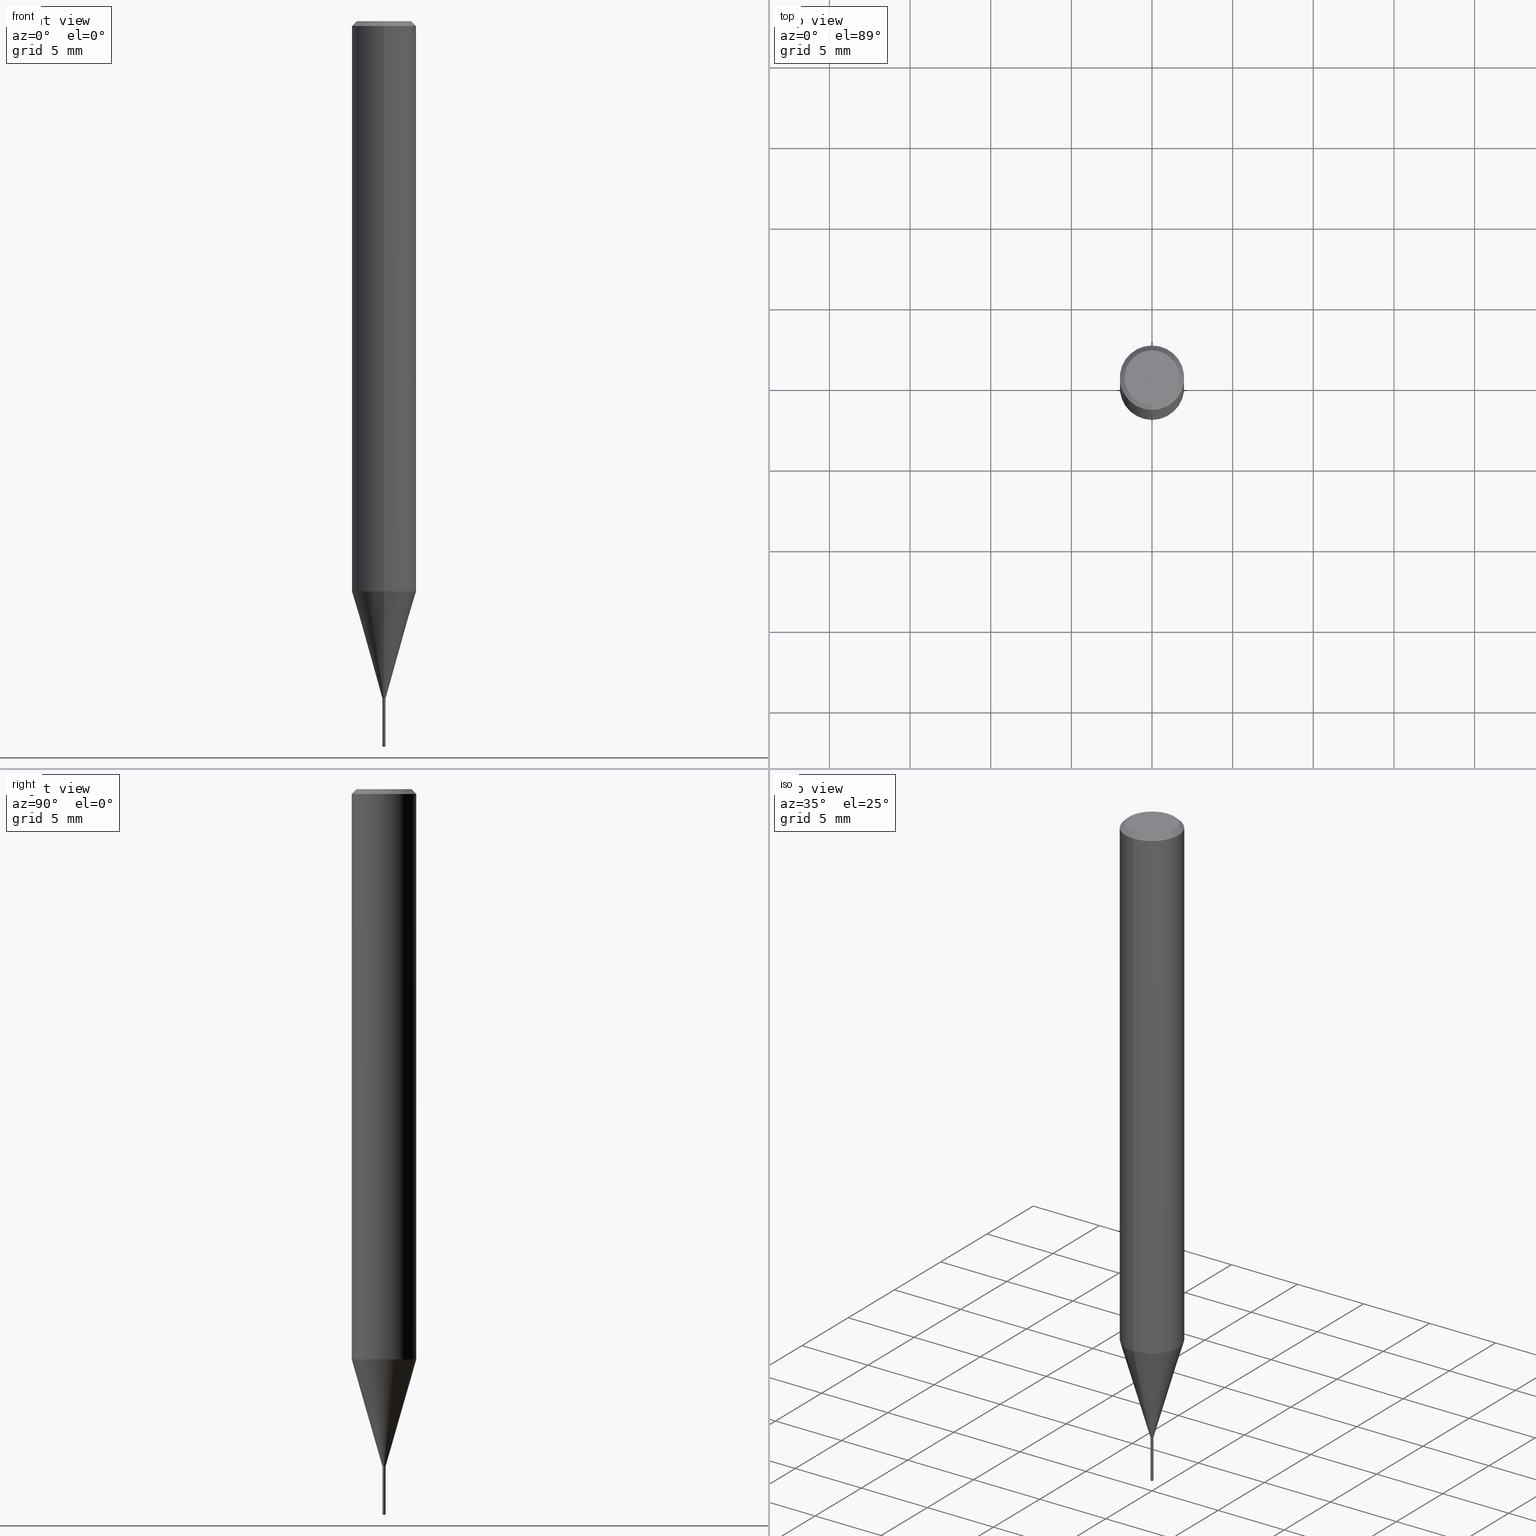
[diagram: canonical four-view strip — front | top / right | iso, engineering-drawing reading convention]
A machine part, canonical four-view strip (front | top / right | iso — engineering-drawing reading convention). The complete STEP part file that produces these views, byte-faithful:
ISO-10303-21;
HEADER;
FILE_DESCRIPTION(('no description'),'unknown implementation level');
FILE_NAME('HSLB2002-030-Huellk.stp','  ',('CIMSOURCE GmbH'),('CADClick - KiM GmbH - www.kimweb.de'),'unknown preprocess','ACIS','unknown authorization');
FILE_SCHEMA(('automotive_design'));
ENDSEC;
DATA;
#1=MECHANICAL_DESIGN_GEOMETRIC_PRESENTATION_REPRESENTATION(' ',(#14,#15,#16,#17,#18,#19,#20,#21,#22,#23,#24,#25,#26,#27,#28,#29,#30,#31,#32,#33,#34,#35,#36,#37,#38,#39,#40,#41,#42,#43,#44,#45,#46,#47,#48,#49,#50,#51,#52,#53,#54,#55,#56,#57,#58,#59,#60,#61,#62,#63,#64,#65,#66,#67,#68,#69,#70,#71,#72,#73,#74),#10);
#2=PRODUCT_DEFINITION_CONTEXT('',#75,'design');
#3=APPLICATION_PROTOCOL_DEFINITION('INTERNATIONAL STANDARD','automotive_design',1994,#75);
#4=PRODUCT_CATEGORY_RELATIONSHIP('NONE','NONE',#76,#77);
#5=SHAPE_DEFINITION_REPRESENTATION(#78,#79);
#6=PRODUCT_DEFINITION_CONTEXT('',#80,'design');
#7=APPLICATION_PROTOCOL_DEFINITION('INTERNATIONAL STANDARD','automotive_design',1994,#80);
#8=PRODUCT_CATEGORY_RELATIONSHIP('NONE','NONE',#81,#82);
#9=SHAPE_DEFINITION_REPRESENTATION(#83,#84);
#10= (GEOMETRIC_REPRESENTATION_CONTEXT(3)GLOBAL_UNCERTAINTY_ASSIGNED_CONTEXT((#87))GLOBAL_UNIT_ASSIGNED_CONTEXT((#89,#90,#91))REPRESENTATION_CONTEXT('NONE','WORKSPACE'));
#14=STYLED_ITEM('',(#93),#94);
#15=STYLED_ITEM('',(#95),#96);
#16=STYLED_ITEM('',(#97),#98);
#17=STYLED_ITEM('',(#99),#100);
#18=STYLED_ITEM('',(#101),#102);
#19=STYLED_ITEM('',(#103),#104);
#20=STYLED_ITEM('',(#105),#106);
#21=STYLED_ITEM('',(#107),#108);
#22=STYLED_ITEM('',(#109),#110);
#23=STYLED_ITEM('',(#111),#112);
#24=STYLED_ITEM('',(#113),#114);
#25=STYLED_ITEM('',(#115),#116);
#26=STYLED_ITEM('',(#117),#118);
#27=STYLED_ITEM('',(#119),#120);
#28=STYLED_ITEM('',(#121),#122);
#29=STYLED_ITEM('',(#123),#124);
#30=STYLED_ITEM('',(#125),#126);
#31=STYLED_ITEM('',(#127),#128);
#32=STYLED_ITEM('',(#129),#130);
#33=STYLED_ITEM('',(#131),#132);
#34=STYLED_ITEM('',(#133),#134);
#35=STYLED_ITEM('',(#135),#136);
#36=STYLED_ITEM('',(#137),#138);
#37=STYLED_ITEM('',(#139),#140);
#38=STYLED_ITEM('',(#141),#142);
#39=STYLED_ITEM('',(#143),#144);
#40=STYLED_ITEM('',(#145),#146);
#41=STYLED_ITEM('',(#147),#148);
#42=STYLED_ITEM('',(#149),#150);
#43=STYLED_ITEM('',(#151),#152);
#44=STYLED_ITEM('',(#153),#154);
#45=STYLED_ITEM('',(#155),#156);
#46=STYLED_ITEM('',(#157),#158);
#47=STYLED_ITEM('',(#159),#160);
#48=STYLED_ITEM('',(#161),#162);
#49=STYLED_ITEM('',(#163),#164);
#50=STYLED_ITEM('',(#165),#166);
#51=STYLED_ITEM('',(#167),#168);
#52=STYLED_ITEM('',(#169),#170);
#53=STYLED_ITEM('',(#171),#172);
#54=STYLED_ITEM('',(#173),#174);
#55=STYLED_ITEM('',(#175),#176);
#56=STYLED_ITEM('',(#177),#178);
#57=STYLED_ITEM('',(#179),#180);
#58=STYLED_ITEM('',(#181),#182);
#59=STYLED_ITEM('',(#183),#184);
#60=STYLED_ITEM('',(#185),#186);
#61=STYLED_ITEM('',(#187),#188);
#62=STYLED_ITEM('',(#189),#190);
#63=STYLED_ITEM('',(#191),#192);
#64=STYLED_ITEM('',(#193),#194);
#65=STYLED_ITEM('',(#195),#196);
#66=STYLED_ITEM('',(#197),#198);
#67=STYLED_ITEM('',(#199),#200);
#68=STYLED_ITEM('',(#201),#202);
#69=STYLED_ITEM('',(#203),#204);
#70=STYLED_ITEM('',(#205),#206);
#71=STYLED_ITEM('',(#207),#208);
#72=STYLED_ITEM('',(#209),#210);
#73=STYLED_ITEM('',(#211),#212);
#74=STYLED_ITEM('',(#213),#214);
#75=APPLICATION_CONTEXT(' ');
#76=PRODUCT_CATEGORY('part','NONE');
#77=PRODUCT_RELATED_PRODUCT_CATEGORY('detail',' ',(#215));
#78=PRODUCT_DEFINITION_SHAPE('NONE','NONE',#216);
#79=ADVANCED_BREP_SHAPE_REPRESENTATION('1',(#168,#217),#10);
#80=APPLICATION_CONTEXT(' ');
#81=PRODUCT_CATEGORY('part','NONE');
#82=PRODUCT_RELATED_PRODUCT_CATEGORY('detail',' ',(#218));
#83=PRODUCT_DEFINITION_SHAPE('NONE','NONE',#219);
#84=ADVANCED_BREP_SHAPE_REPRESENTATION('2',(#192,#220),#10);
#87=UNCERTAINTY_MEASURE_WITH_UNIT(LENGTH_MEASURE(1.0E-006),#89,'','');
#89= (CONVERSION_BASED_UNIT('MILLIMETRE',#223)LENGTH_UNIT()NAMED_UNIT(#226));
#90= (NAMED_UNIT(#228)PLANE_ANGLE_UNIT()SI_UNIT($,.RADIAN.));
#91= (NAMED_UNIT(#228)SOLID_ANGLE_UNIT()SI_UNIT($,.STERADIAN.));
#93=PRESENTATION_STYLE_ASSIGNMENT((#234));
#94=ADVANCED_FACE('',(#235),#236,.T.);
#95=PRESENTATION_STYLE_ASSIGNMENT((#237));
#96=EDGE_CURVE('',#106,#190,#238,.T.);
#97=PRESENTATION_STYLE_ASSIGNMENT((#239));
#98=ADVANCED_FACE('',(#240),#241,.T.);
#99=PRESENTATION_STYLE_ASSIGNMENT((#242));
#100=EDGE_CURVE('',#138,#166,#243,.T.);
#101=PRESENTATION_STYLE_ASSIGNMENT((#244));
#102=VERTEX_POINT('',#245);
#103=PRESENTATION_STYLE_ASSIGNMENT((#246));
#104=EDGE_CURVE('',#172,#160,#247,.T.);
#105=PRESENTATION_STYLE_ASSIGNMENT((#248));
#106=VERTEX_POINT('',#249);
#107=PRESENTATION_STYLE_ASSIGNMENT((#250));
#108=EDGE_CURVE('',#106,#188,#251,.T.);
#109=PRESENTATION_STYLE_ASSIGNMENT((#252));
#110=ADVANCED_FACE('',(#253,#254),#255,.T.);
#111=PRESENTATION_STYLE_ASSIGNMENT((#256));
#112=ADVANCED_FACE('',(#257),#258,.T.);
#113=PRESENTATION_STYLE_ASSIGNMENT((#259));
#114=EDGE_CURVE('',#190,#138,#260,.T.);
#115=PRESENTATION_STYLE_ASSIGNMENT((#261));
#116=EDGE_CURVE('',#188,#106,#262,.T.);
#117=PRESENTATION_STYLE_ASSIGNMENT((#263));
#118=EDGE_CURVE('',#170,#190,#264,.T.);
#119=PRESENTATION_STYLE_ASSIGNMENT((#265));
#120=VERTEX_POINT('',#266);
#121=PRESENTATION_STYLE_ASSIGNMENT((#267));
#122=VERTEX_POINT('',#268);
#123=PRESENTATION_STYLE_ASSIGNMENT((#269));
#124=VERTEX_POINT('',#270);
#125=PRESENTATION_STYLE_ASSIGNMENT((#271));
#126=ADVANCED_FACE('',(#272),#273,.T.);
#127=PRESENTATION_STYLE_ASSIGNMENT((#274));
#128=ADVANCED_FACE('',(#275),#276,.T.);
#129=PRESENTATION_STYLE_ASSIGNMENT((#277));
#130=EDGE_CURVE('',#122,#182,#278,.T.);
#131=PRESENTATION_STYLE_ASSIGNMENT((#279));
#132=VERTEX_POINT('',#280);
#133=PRESENTATION_STYLE_ASSIGNMENT((#281));
#134=EDGE_CURVE('',#154,#132,#282,.T.);
#135=PRESENTATION_STYLE_ASSIGNMENT((#283));
#136=ADVANCED_FACE('',(#284),#285,.T.);
#137=PRESENTATION_STYLE_ASSIGNMENT((#286));
#138=VERTEX_POINT('',#287);
#139=PRESENTATION_STYLE_ASSIGNMENT((#288));
#140=EDGE_CURVE('',#182,#102,#289,.T.);
#141=PRESENTATION_STYLE_ASSIGNMENT((#290));
#142=EDGE_CURVE('',#120,#212,#291,.T.);
#143=PRESENTATION_STYLE_ASSIGNMENT((#292));
#144=ADVANCED_FACE('',(#293),#294,.T.);
#145=PRESENTATION_STYLE_ASSIGNMENT((#295));
#146=EDGE_CURVE('',#132,#172,#296,.T.);
#147=PRESENTATION_STYLE_ASSIGNMENT((#297));
#148=EDGE_CURVE('',#102,#182,#298,.T.);
#149=PRESENTATION_STYLE_ASSIGNMENT((#299));
#150=ADVANCED_FACE('',(#300),#301,.T.);
#151=PRESENTATION_STYLE_ASSIGNMENT((#302));
#152=EDGE_CURVE('',#120,#122,#303,.T.);
#153=PRESENTATION_STYLE_ASSIGNMENT((#304));
#154=VERTEX_POINT('',#305);
#155=PRESENTATION_STYLE_ASSIGNMENT((#306));
#156=ADVANCED_FACE('',(#307),#308,.T.);
#157=PRESENTATION_STYLE_ASSIGNMENT((#309));
#158=ADVANCED_FACE('',(#310),#311,.T.);
#159=PRESENTATION_STYLE_ASSIGNMENT((#312));
#160=VERTEX_POINT('',#313);
#161=PRESENTATION_STYLE_ASSIGNMENT((#314));
#162=EDGE_CURVE('',#166,#170,#315,.T.);
#163=PRESENTATION_STYLE_ASSIGNMENT((#316));
#164=ADVANCED_FACE('',(#317),#318,.T.);
#165=PRESENTATION_STYLE_ASSIGNMENT((#319));
#166=VERTEX_POINT('',#320);
#167=PRESENTATION_STYLE_ASSIGNMENT((#321));
#168=MANIFOLD_SOLID_BREP('1',#322);
#169=PRESENTATION_STYLE_ASSIGNMENT((#323));
#170=VERTEX_POINT('',#324);
#171=PRESENTATION_STYLE_ASSIGNMENT((#325));
#172=VERTEX_POINT('',#326);
#173=PRESENTATION_STYLE_ASSIGNMENT((#327));
#174=ADVANCED_FACE('',(#328),#329,.T.);
#175=PRESENTATION_STYLE_ASSIGNMENT((#330));
#176=EDGE_CURVE('',#212,#124,#331,.T.);
#177=PRESENTATION_STYLE_ASSIGNMENT((#332));
#178=EDGE_CURVE('',#170,#188,#333,.T.);
#179=PRESENTATION_STYLE_ASSIGNMENT((#334));
#180=EDGE_CURVE('',#124,#212,#335,.T.);
#181=PRESENTATION_STYLE_ASSIGNMENT((#336));
#182=VERTEX_POINT('',#337);
#183=PRESENTATION_STYLE_ASSIGNMENT((#338));
#184=EDGE_CURVE('',#172,#132,#339,.T.);
#185=PRESENTATION_STYLE_ASSIGNMENT((#340));
#186=EDGE_CURVE('',#102,#120,#341,.T.);
#187=PRESENTATION_STYLE_ASSIGNMENT((#342));
#188=VERTEX_POINT('',#343);
#189=PRESENTATION_STYLE_ASSIGNMENT((#344));
#190=VERTEX_POINT('',#345);
#191=PRESENTATION_STYLE_ASSIGNMENT((#346));
#192=MANIFOLD_SOLID_BREP('2',#347);
#193=PRESENTATION_STYLE_ASSIGNMENT((#348));
#194=EDGE_CURVE('',#166,#138,#349,.T.);
#195=PRESENTATION_STYLE_ASSIGNMENT((#350));
#196=ADVANCED_FACE('',(#351),#352,.T.);
#197=PRESENTATION_STYLE_ASSIGNMENT((#353));
#198=EDGE_CURVE('',#190,#170,#354,.T.);
#199=PRESENTATION_STYLE_ASSIGNMENT((#355));
#200=EDGE_CURVE('',#172,#132,#356,.T.);
#201=PRESENTATION_STYLE_ASSIGNMENT((#357));
#202=EDGE_CURVE('',#160,#154,#358,.T.);
#203=PRESENTATION_STYLE_ASSIGNMENT((#359));
#204=EDGE_CURVE('',#122,#120,#360,.T.);
#205=PRESENTATION_STYLE_ASSIGNMENT((#361));
#206=ADVANCED_FACE('',(#362),#363,.T.);
#207=PRESENTATION_STYLE_ASSIGNMENT((#364));
#208=ADVANCED_FACE('',(#365),#366,.T.);
#209=PRESENTATION_STYLE_ASSIGNMENT((#367));
#210=EDGE_CURVE('',#154,#160,#368,.T.);
#211=PRESENTATION_STYLE_ASSIGNMENT((#369));
#212=VERTEX_POINT('',#370);
#213=PRESENTATION_STYLE_ASSIGNMENT((#371));
#214=EDGE_CURVE('',#124,#122,#372,.T.);
#215=PRODUCT('1','1','PART-1-DESC',(#373));
#216=PRODUCT_DEFINITION('NONE','NONE',#374,#2);
#217=AXIS2_PLACEMENT_3D('',#375,#376,#377);
#218=PRODUCT('2','2','PART-2-DESC',(#378));
#219=PRODUCT_DEFINITION('NONE','NONE',#379,#6);
#220=AXIS2_PLACEMENT_3D('',#380,#381,#382);
#223=LENGTH_MEASURE_WITH_UNIT(LENGTH_MEASURE(1.0),#383);
#226=DIMENSIONAL_EXPONENTS(1.0,0.0,0.0,0.0,0.0,0.0,0.0);
#228=DIMENSIONAL_EXPONENTS(0.0,0.0,0.0,0.0,0.0,0.0,0.0);
#234=SURFACE_STYLE_USAGE(.BOTH.,#384);
#235=FACE_OUTER_BOUND('',#385,.T.);
#236=CONICAL_SURFACE('',#386,0.09995,0.00166666512345941);
#237=CURVE_STYLE('',#387,POSITIVE_LENGTH_MEASURE(1.0E-006),#388);
#238=LINE('',#389,#390);
#239=SURFACE_STYLE_USAGE(.BOTH.,#391);
#240=FACE_OUTER_BOUND('',#392,.T.);
#241=CONICAL_SURFACE('',#393,1.04745,0.279233718115795);
#242=CURVE_STYLE('',#394,POSITIVE_LENGTH_MEASURE(1.0E-006),#395);
#243=CIRCLE('',#396,2.0);
#244=POINT_STYLE(' ',#397,POSITIVE_LENGTH_MEASURE(1.0E-006),#398);
#245=CARTESIAN_POINT('',(1.16276373295435E-017,-0.09495,-44.84));
#246=CURVE_STYLE('',#399,POSITIVE_LENGTH_MEASURE(1.0E-006),#400);
#247=LINE('',#401,#402);
#248=POINT_STYLE(' ',#403,POSITIVE_LENGTH_MEASURE(1.0E-006),#404);
#249=CARTESIAN_POINT('',(0.0,1.7,0.0));
#250=CURVE_STYLE('',#405,POSITIVE_LENGTH_MEASURE(1.0E-006),#406);
#251=CIRCLE('',#407,1.7);
#252=SURFACE_STYLE_USAGE(.BOTH.,#408);
#253=FACE_OUTER_BOUND('',#409,.T.);
#254=FACE_BOUND('',#410,.T.);
#255=PLANE('',#411);
#256=SURFACE_STYLE_USAGE(.BOTH.,#412);
#257=FACE_OUTER_BOUND('',#413,.T.);
#258=CYLINDRICAL_SURFACE('',#414,0.09495);
#259=CURVE_STYLE('',#415,POSITIVE_LENGTH_MEASURE(1.0E-006),#416);
#260=LINE('',#417,#418);
#261=CURVE_STYLE('',#419,POSITIVE_LENGTH_MEASURE(1.0E-006),#420);
#262=CIRCLE('',#421,1.7);
#263=CURVE_STYLE('',#422,POSITIVE_LENGTH_MEASURE(1.0E-006),#423);
#264=CIRCLE('',#424,2.0);
#265=POINT_STYLE(' ',#425,POSITIVE_LENGTH_MEASURE(1.0E-006),#426);
#266=CARTESIAN_POINT('',(1.16276373295435E-017,-0.09495,-42.0));
#267=POINT_STYLE(' ',#427,POSITIVE_LENGTH_MEASURE(1.0E-006),#428);
#268=CARTESIAN_POINT('',(0.0,0.09495,-42.0));
#269=POINT_STYLE(' ',#429,POSITIVE_LENGTH_MEASURE(1.0E-006),#430);
#270=CARTESIAN_POINT('',(0.0,1.99995,-35.356));
#271=SURFACE_STYLE_USAGE(.BOTH.,#431);
#272=FACE_OUTER_BOUND('',#432,.T.);
#273=CYLINDRICAL_SURFACE('',#433,2.0);
#274=SURFACE_STYLE_USAGE(.BOTH.,#434);
#275=FACE_OUTER_BOUND('',#435,.T.);
#276=CONICAL_SURFACE('',#436,1.85,0.785398163397453);
#277=CURVE_STYLE('',#437,POSITIVE_LENGTH_MEASURE(1.0E-006),#438);
#278=LINE('',#439,#440);
#279=POINT_STYLE(' ',#441,POSITIVE_LENGTH_MEASURE(1.0E-006),#442);
#280=CARTESIAN_POINT('',(0.0,0.1,-44.9));
#281=CURVE_STYLE('',#443,POSITIVE_LENGTH_MEASURE(1.0E-006),#444);
#282=LINE('',#445,#446);
#283=SURFACE_STYLE_USAGE(.BOTH.,#447);
#284=FACE_OUTER_BOUND('',#448,.T.);
#285=CYLINDRICAL_SURFACE('',#449,2.0);
#286=POINT_STYLE(' ',#450,POSITIVE_LENGTH_MEASURE(1.0E-006),#451);
#287=CARTESIAN_POINT('',(0.0,2.0,-35.356));
#288=CURVE_STYLE('',#452,POSITIVE_LENGTH_MEASURE(1.0E-006),#453);
#289=CIRCLE('',#454,0.09495);
#290=CURVE_STYLE('',#455,POSITIVE_LENGTH_MEASURE(1.0E-006),#456);
#291=LINE('',#457,#458);
#292=SURFACE_STYLE_USAGE(.BOTH.,#459);
#293=FACE_OUTER_BOUND('',#460,.T.);
#294=CYLINDRICAL_SURFACE('',#461,0.09495);
#295=CURVE_STYLE('',#462,POSITIVE_LENGTH_MEASURE(1.0E-006),#463);
#296=CIRCLE('',#464,0.1);
#297=CURVE_STYLE('',#465,POSITIVE_LENGTH_MEASURE(1.0E-006),#466);
#298=CIRCLE('',#467,0.09495);
#299=SURFACE_STYLE_USAGE(.BOTH.,#468);
#300=FACE_OUTER_BOUND('',#469,.T.);
#301=SPHERICAL_SURFACE('',#470,0.1);
#302=CURVE_STYLE('',#471,POSITIVE_LENGTH_MEASURE(1.0E-006),#472);
#303=CIRCLE('',#473,0.09495);
#304=POINT_STYLE(' ',#474,POSITIVE_LENGTH_MEASURE(1.0E-006),#475);
#305=CARTESIAN_POINT('',(0.0,0.0999,-44.84));
#306=SURFACE_STYLE_USAGE(.BOTH.,#476);
#307=FACE_OUTER_BOUND('',#477,.T.);
#308=SPHERICAL_SURFACE('',#478,0.1);
#309=SURFACE_STYLE_USAGE(.BOTH.,#479);
#310=FACE_OUTER_BOUND('',#480,.T.);
#311=CONICAL_SURFACE('',#481,0.09995,0.00166666512345941);
#312=POINT_STYLE(' ',#482,POSITIVE_LENGTH_MEASURE(1.0E-006),#483);
#313=CARTESIAN_POINT('',(1.22338174746855E-017,-0.0999,-44.84));
#314=CURVE_STYLE('',#484,POSITIVE_LENGTH_MEASURE(1.0E-006),#485);
#315=LINE('',#486,#487);
#316=SURFACE_STYLE_USAGE(.BOTH.,#488);
#317=FACE_OUTER_BOUND('',#489,.T.);
#318=CONICAL_SURFACE('',#490,1.85,0.785398163397453);
#319=POINT_STYLE(' ',#491,POSITIVE_LENGTH_MEASURE(1.0E-006),#492);
#320=CARTESIAN_POINT('',(2.44921270764475E-016,-2.0,-35.356));
#321=SURFACE_STYLE_USAGE(.BOTH.,#493);
#322=CLOSED_SHELL('',(#144,#208,#126,#164,#110,#196,#128,#136,#98,#112,#174));
#323=POINT_STYLE(' ',#494,POSITIVE_LENGTH_MEASURE(1.0E-006),#495);
#324=CARTESIAN_POINT('',(2.44921270764475E-016,-2.0,-0.299999999999997));
#325=POINT_STYLE(' ',#496,POSITIVE_LENGTH_MEASURE(1.0E-006),#497);
#326=CARTESIAN_POINT('',(1.22460635382238E-017,-0.1,-44.9));
#327=SURFACE_STYLE_USAGE(.BOTH.,#498);
#328=FACE_OUTER_BOUND('',#499,.T.);
#329=PLANE('',#500);
#330=CURVE_STYLE('',#501,POSITIVE_LENGTH_MEASURE(1.0E-006),#502);
#331=CIRCLE('',#503,1.99995);
#332=CURVE_STYLE('',#504,POSITIVE_LENGTH_MEASURE(1.0E-006),#505);
#333=LINE('',#506,#507);
#334=CURVE_STYLE('',#508,POSITIVE_LENGTH_MEASURE(1.0E-006),#509);
#335=CIRCLE('',#510,1.99995);
#336=POINT_STYLE(' ',#511,POSITIVE_LENGTH_MEASURE(1.0E-006),#512);
#337=CARTESIAN_POINT('',(0.0,0.09495,-44.84));
#338=CURVE_STYLE('',#513,POSITIVE_LENGTH_MEASURE(1.0E-006),#514);
#339=CIRCLE('',#515,0.1);
#340=CURVE_STYLE('',#516,POSITIVE_LENGTH_MEASURE(1.0E-006),#517);
#341=LINE('',#518,#519);
#342=POINT_STYLE(' ',#520,POSITIVE_LENGTH_MEASURE(1.0E-006),#521);
#343=CARTESIAN_POINT('',(2.08183080149804E-016,-1.7,0.0));
#344=POINT_STYLE(' ',#522,POSITIVE_LENGTH_MEASURE(1.0E-006),#523);
#345=CARTESIAN_POINT('',(0.0,2.0,-0.299999999999997));
#346=SURFACE_STYLE_USAGE(.BOTH.,#524);
#347=CLOSED_SHELL('',(#156,#94,#206,#158,#150));
#348=CURVE_STYLE('',#525,POSITIVE_LENGTH_MEASURE(1.0E-006),#526);
#349=CIRCLE('',#527,2.0);
#350=SURFACE_STYLE_USAGE(.BOTH.,#528);
#351=FACE_OUTER_BOUND('',#529,.T.);
#352=PLANE('',#530);
#353=CURVE_STYLE('',#531,POSITIVE_LENGTH_MEASURE(1.0E-006),#532);
#354=CIRCLE('',#533,2.0);
#355=CURVE_STYLE('',#534,POSITIVE_LENGTH_MEASURE(1.0E-006),#535);
#356=CIRCLE('',#536,0.1);
#357=CURVE_STYLE('',#537,POSITIVE_LENGTH_MEASURE(1.0E-006),#538);
#358=CIRCLE('',#539,0.0999);
#359=CURVE_STYLE('',#540,POSITIVE_LENGTH_MEASURE(1.0E-006),#541);
#360=CIRCLE('',#542,0.09495);
#361=SURFACE_STYLE_USAGE(.BOTH.,#543);
#362=FACE_OUTER_BOUND('',#544,.T.);
#363=PLANE('',#545);
#364=SURFACE_STYLE_USAGE(.BOTH.,#546);
#365=FACE_OUTER_BOUND('',#547,.T.);
#366=CONICAL_SURFACE('',#548,1.04745,0.279233718115795);
#367=CURVE_STYLE('',#549,POSITIVE_LENGTH_MEASURE(1.0E-006),#550);
#368=CIRCLE('',#551,0.0999);
#369=POINT_STYLE(' ',#552,POSITIVE_LENGTH_MEASURE(1.0E-006),#553);
#370=CARTESIAN_POINT('',(2.44915147732706E-016,-1.99995,-35.356));
#371=CURVE_STYLE('',#554,POSITIVE_LENGTH_MEASURE(1.0E-006),#555);
#372=LINE('',#556,#557);
#373=PRODUCT_CONTEXT('',#75,'mechanical');
#374=PRODUCT_DEFINITION_FORMATION_WITH_SPECIFIED_SOURCE(' ','NONE',#215,.NOT_KNOWN.);
#375=CARTESIAN_POINT('',(0.0,0.0,0.0));
#376=DIRECTION('',(0.0,0.0,1.0));
#377=DIRECTION('',(1.0,0.0,0.0));
#378=PRODUCT_CONTEXT('',#80,'mechanical');
#379=PRODUCT_DEFINITION_FORMATION_WITH_SPECIFIED_SOURCE(' ','NONE',#218,.NOT_KNOWN.);
#380=CARTESIAN_POINT('',(0.0,0.0,0.0));
#381=DIRECTION('',(0.0,0.0,1.0));
#382=DIRECTION('',(1.0,0.0,0.0));
#383= (NAMED_UNIT(#226)LENGTH_UNIT()SI_UNIT(.MILLI.,.METRE.));
#384=SURFACE_SIDE_STYLE('',(#559));
#385=EDGE_LOOP('',(#560,#561,#562,#563));
#386=AXIS2_PLACEMENT_3D('',#564,#565,#566);
#387=DRAUGHTING_PRE_DEFINED_CURVE_FONT('continuous');
#388=COLOUR_RGB('',0.498039215803146,0.498039215803146,0.498039215803146);
#389=CARTESIAN_POINT('',(-2.2655217545714E-016,1.85,-0.149999999999999));
#390=VECTOR('',#567,1.0);
#391=SURFACE_SIDE_STYLE('',(#568));
#392=EDGE_LOOP('',(#569,#570,#571,#572));
#393=AXIS2_PLACEMENT_3D('',#573,#574,#575);
#394=DRAUGHTING_PRE_DEFINED_CURVE_FONT('continuous');
#395=COLOUR_RGB('',0.498039215803146,0.498039215803146,0.498039215803146);
#396=AXIS2_PLACEMENT_3D('',#576,#577,#578);
#397=PRE_DEFINED_MARKER('');
#398=COLOUR_RGB('',0.498039215803146,0.498039215803146,0.498039215803146);
#399=DRAUGHTING_PRE_DEFINED_CURVE_FONT('continuous');
#400=COLOUR_RGB('',0.800000011920929,0.800000011920929,0.800000011920929);
#401=CARTESIAN_POINT('',(1.22399405064547E-017,-0.09995,-44.87));
#402=VECTOR('',#579,1.0);
#403=PRE_DEFINED_MARKER('');
#404=COLOUR_RGB('',0.498039215803146,0.498039215803146,0.498039215803146);
#405=DRAUGHTING_PRE_DEFINED_CURVE_FONT('continuous');
#406=COLOUR_RGB('',0.498039215803146,0.498039215803146,0.498039215803146);
#407=AXIS2_PLACEMENT_3D('',#580,#581,#582);
#408=SURFACE_SIDE_STYLE('',(#583));
#409=EDGE_LOOP('',(#584,#585));
#410=EDGE_LOOP('',(#586,#587));
#411=AXIS2_PLACEMENT_3D('',#588,#589,#590);
#412=SURFACE_SIDE_STYLE('',(#591));
#413=EDGE_LOOP('',(#592,#593,#594,#595));
#414=AXIS2_PLACEMENT_3D('',#596,#597,#598);
#415=DRAUGHTING_PRE_DEFINED_CURVE_FONT('continuous');
#416=COLOUR_RGB('',0.498039215803146,0.498039215803146,0.498039215803146);
#417=CARTESIAN_POINT('',(-2.44921270764475E-016,2.0,-17.828));
#418=VECTOR('',#599,1.0);
#419=DRAUGHTING_PRE_DEFINED_CURVE_FONT('continuous');
#420=COLOUR_RGB('',0.498039215803146,0.498039215803146,0.498039215803146);
#421=AXIS2_PLACEMENT_3D('',#600,#601,#602);
#422=DRAUGHTING_PRE_DEFINED_CURVE_FONT('continuous');
#423=COLOUR_RGB('',0.498039215803146,0.498039215803146,0.498039215803146);
#424=AXIS2_PLACEMENT_3D('',#603,#604,#605);
#425=PRE_DEFINED_MARKER('');
#426=COLOUR_RGB('',0.498039215803146,0.498039215803146,0.498039215803146);
#427=PRE_DEFINED_MARKER('');
#428=COLOUR_RGB('',0.498039215803146,0.498039215803146,0.498039215803146);
#429=PRE_DEFINED_MARKER('');
#430=COLOUR_RGB('',0.498039215803146,0.498039215803146,0.498039215803146);
#431=SURFACE_SIDE_STYLE('',(#606));
#432=EDGE_LOOP('',(#607,#608,#609,#610));
#433=AXIS2_PLACEMENT_3D('',#611,#612,#613);
#434=SURFACE_SIDE_STYLE('',(#614));
#435=EDGE_LOOP('',(#615,#616,#617,#618));
#436=AXIS2_PLACEMENT_3D('',#619,#620,#621);
#437=DRAUGHTING_PRE_DEFINED_CURVE_FONT('continuous');
#438=COLOUR_RGB('',0.498039215803146,0.498039215803146,0.498039215803146);
#439=CARTESIAN_POINT('',(-1.16276373295435E-017,0.09495,-43.42));
#440=VECTOR('',#622,1.0);
#441=PRE_DEFINED_MARKER('');
#442=COLOUR_RGB('',0.800000011920929,0.800000011920929,0.800000011920929);
#443=DRAUGHTING_PRE_DEFINED_CURVE_FONT('continuous');
#444=COLOUR_RGB('',0.800000011920929,0.800000011920929,0.800000011920929);
#445=CARTESIAN_POINT('',(-1.22399405064547E-017,0.09995,-44.87));
#446=VECTOR('',#623,1.0);
#447=SURFACE_SIDE_STYLE('',(#624));
#448=EDGE_LOOP('',(#625,#626,#627,#628));
#449=AXIS2_PLACEMENT_3D('',#629,#630,#631);
#450=PRE_DEFINED_MARKER('');
#451=COLOUR_RGB('',0.498039215803146,0.498039215803146,0.498039215803146);
#452=DRAUGHTING_PRE_DEFINED_CURVE_FONT('continuous');
#453=COLOUR_RGB('',0.498039215803146,0.498039215803146,0.498039215803146);
#454=AXIS2_PLACEMENT_3D('',#632,#633,#634);
#455=DRAUGHTING_PRE_DEFINED_CURVE_FONT('continuous');
#456=COLOUR_RGB('',0.498039215803146,0.498039215803146,0.498039215803146);
#457=CARTESIAN_POINT('',(1.28271392531125E-016,-1.04745,-38.678));
#458=VECTOR('',#635,1.0);
#459=SURFACE_SIDE_STYLE('',(#636));
#460=EDGE_LOOP('',(#637,#638,#639,#640));
#461=AXIS2_PLACEMENT_3D('',#641,#642,#643);
#462=DRAUGHTING_PRE_DEFINED_CURVE_FONT('continuous');
#463=COLOUR_RGB('',0.800000011920929,0.800000011920929,0.800000011920929);
#464=AXIS2_PLACEMENT_3D('',#644,#645,#646);
#465=DRAUGHTING_PRE_DEFINED_CURVE_FONT('continuous');
#466=COLOUR_RGB('',0.498039215803146,0.498039215803146,0.498039215803146);
#467=AXIS2_PLACEMENT_3D('',#647,#648,#649);
#468=SURFACE_SIDE_STYLE('',(#650));
#469=EDGE_LOOP('',(#651,#652));
#470=AXIS2_PLACEMENT_3D('',#653,#654,#655);
#471=DRAUGHTING_PRE_DEFINED_CURVE_FONT('continuous');
#472=COLOUR_RGB('',0.498039215803146,0.498039215803146,0.498039215803146);
#473=AXIS2_PLACEMENT_3D('',#656,#657,#658);
#474=PRE_DEFINED_MARKER('');
#475=COLOUR_RGB('',0.800000011920929,0.800000011920929,0.800000011920929);
#476=SURFACE_SIDE_STYLE('',(#659));
#477=EDGE_LOOP('',(#660,#661));
#478=AXIS2_PLACEMENT_3D('',#662,#663,#664);
#479=SURFACE_SIDE_STYLE('',(#665));
#480=EDGE_LOOP('',(#666,#667,#668,#669));
#481=AXIS2_PLACEMENT_3D('',#670,#671,#672);
#482=PRE_DEFINED_MARKER('');
#483=COLOUR_RGB('',0.800000011920929,0.800000011920929,0.800000011920929);
#484=DRAUGHTING_PRE_DEFINED_CURVE_FONT('continuous');
#485=COLOUR_RGB('',0.498039215803146,0.498039215803146,0.498039215803146);
#486=CARTESIAN_POINT('',(2.44921270764475E-016,-2.0,-17.828));
#487=VECTOR('',#673,1.0);
#488=SURFACE_SIDE_STYLE('',(#674));
#489=EDGE_LOOP('',(#675,#676,#677,#678));
#490=AXIS2_PLACEMENT_3D('',#679,#680,#681);
#491=PRE_DEFINED_MARKER('');
#492=COLOUR_RGB('',0.498039215803146,0.498039215803146,0.498039215803146);
#493=SURFACE_SIDE_STYLE('',(#682));
#494=PRE_DEFINED_MARKER('');
#495=COLOUR_RGB('',0.498039215803146,0.498039215803146,0.498039215803146);
#496=PRE_DEFINED_MARKER('');
#497=COLOUR_RGB('',0.800000011920929,0.800000011920929,0.800000011920929);
#498=SURFACE_SIDE_STYLE('',(#683));
#499=EDGE_LOOP('',(#684,#685));
#500=AXIS2_PLACEMENT_3D('',#686,#687,#688);
#501=DRAUGHTING_PRE_DEFINED_CURVE_FONT('continuous');
#502=COLOUR_RGB('',0.498039215803146,0.498039215803146,0.498039215803146);
#503=AXIS2_PLACEMENT_3D('',#689,#690,#691);
#504=DRAUGHTING_PRE_DEFINED_CURVE_FONT('continuous');
#505=COLOUR_RGB('',0.498039215803146,0.498039215803146,0.498039215803146);
#506=CARTESIAN_POINT('',(2.2655217545714E-016,-1.85,-0.149999999999999));
#507=VECTOR('',#692,1.0);
#508=DRAUGHTING_PRE_DEFINED_CURVE_FONT('continuous');
#509=COLOUR_RGB('',0.498039215803146,0.498039215803146,0.498039215803146);
#510=AXIS2_PLACEMENT_3D('',#693,#694,#695);
#511=PRE_DEFINED_MARKER('');
#512=COLOUR_RGB('',0.498039215803146,0.498039215803146,0.498039215803146);
#513=DRAUGHTING_PRE_DEFINED_CURVE_FONT('continuous');
#514=COLOUR_RGB('',0.800000011920929,0.800000011920929,0.800000011920929);
#515=AXIS2_PLACEMENT_3D('',#696,#697,#698);
#516=DRAUGHTING_PRE_DEFINED_CURVE_FONT('continuous');
#517=COLOUR_RGB('',0.498039215803146,0.498039215803146,0.498039215803146);
#518=CARTESIAN_POINT('',(1.16276373295435E-017,-0.09495,-43.42));
#519=VECTOR('',#699,1.0);
#520=PRE_DEFINED_MARKER('');
#521=COLOUR_RGB('',0.498039215803146,0.498039215803146,0.498039215803146);
#522=PRE_DEFINED_MARKER('');
#523=COLOUR_RGB('',0.498039215803146,0.498039215803146,0.498039215803146);
#524=SURFACE_SIDE_STYLE('',(#700));
#525=DRAUGHTING_PRE_DEFINED_CURVE_FONT('continuous');
#526=COLOUR_RGB('',0.498039215803146,0.498039215803146,0.498039215803146);
#527=AXIS2_PLACEMENT_3D('',#701,#702,#703);
#528=SURFACE_SIDE_STYLE('',(#704));
#529=EDGE_LOOP('',(#705,#706));
#530=AXIS2_PLACEMENT_3D('',#707,#708,#709);
#531=DRAUGHTING_PRE_DEFINED_CURVE_FONT('continuous');
#532=COLOUR_RGB('',0.498039215803146,0.498039215803146,0.498039215803146);
#533=AXIS2_PLACEMENT_3D('',#710,#711,#712);
#534=DRAUGHTING_PRE_DEFINED_CURVE_FONT('continuous');
#535=COLOUR_RGB('',0.800000011920929,0.800000011920929,0.800000011920929);
#536=AXIS2_PLACEMENT_3D('',#713,#714,#715);
#537=DRAUGHTING_PRE_DEFINED_CURVE_FONT('continuous');
#538=COLOUR_RGB('',0.800000011920929,0.800000011920929,0.800000011920929);
#539=AXIS2_PLACEMENT_3D('',#716,#717,#718);
#540=DRAUGHTING_PRE_DEFINED_CURVE_FONT('continuous');
#541=COLOUR_RGB('',0.498039215803146,0.498039215803146,0.498039215803146);
#542=AXIS2_PLACEMENT_3D('',#719,#720,#721);
#543=SURFACE_SIDE_STYLE('',(#722));
#544=EDGE_LOOP('',(#723,#724));
#545=AXIS2_PLACEMENT_3D('',#725,#726,#727);
#546=SURFACE_SIDE_STYLE('',(#728));
#547=EDGE_LOOP('',(#729,#730,#731,#732));
#548=AXIS2_PLACEMENT_3D('',#733,#734,#735);
#549=DRAUGHTING_PRE_DEFINED_CURVE_FONT('continuous');
#550=COLOUR_RGB('',0.800000011920929,0.800000011920929,0.800000011920929);
#551=AXIS2_PLACEMENT_3D('',#736,#737,#738);
#552=PRE_DEFINED_MARKER('');
#553=COLOUR_RGB('',0.498039215803146,0.498039215803146,0.498039215803146);
#554=DRAUGHTING_PRE_DEFINED_CURVE_FONT('continuous');
#555=COLOUR_RGB('',0.498039215803146,0.498039215803146,0.498039215803146);
#556=CARTESIAN_POINT('',(-1.28271392531125E-016,1.04745,-38.678));
#557=VECTOR('',#739,1.0);
#559=SURFACE_STYLE_FILL_AREA(#740);
#560=ORIENTED_EDGE('',*,*,#134,.F.);
#561=ORIENTED_EDGE('',*,*,#210,.T.);
#562=ORIENTED_EDGE('',*,*,#104,.F.);
#563=ORIENTED_EDGE('',*,*,#146,.F.);
#564=CARTESIAN_POINT('',(0.0,0.0,-44.87));
#565=DIRECTION('',(0.0,-0.0,-1.0));
#566=DIRECTION('',(0.0,1.0,0.0));
#567=DIRECTION('',(-8.6592745707194E-017,0.707106781186551,-0.707106781186544));
#568=SURFACE_STYLE_FILL_AREA(#741);
#569=ORIENTED_EDGE('',*,*,#214,.T.);
#570=ORIENTED_EDGE('',*,*,#152,.F.);
#571=ORIENTED_EDGE('',*,*,#142,.T.);
#572=ORIENTED_EDGE('',*,*,#176,.T.);
#573=CARTESIAN_POINT('',(0.0,0.0,-38.678));
#574=DIRECTION('',(-0.0,-0.0,1.0));
#575=DIRECTION('',(0.0,1.0,0.0));
#576=CARTESIAN_POINT('',(0.0,0.0,-35.356));
#577=DIRECTION('',(0.0,0.0,-1.0));
#578=DIRECTION('',(0.0,1.0,0.0));
#579=DIRECTION('',(-2.041007754973E-019,0.00166666435185672,0.999998611114005));
#580=CARTESIAN_POINT('',(0.0,0.0,0.0));
#581=DIRECTION('',(0.0,0.0,-1.0));
#582=DIRECTION('',(0.0,1.0,0.0));
#583=SURFACE_STYLE_FILL_AREA(#742);
#584=ORIENTED_EDGE('',*,*,#100,.T.);
#585=ORIENTED_EDGE('',*,*,#194,.T.);
#586=ORIENTED_EDGE('',*,*,#180,.F.);
#587=ORIENTED_EDGE('',*,*,#176,.F.);
#588=CARTESIAN_POINT('',(0.0,1.0,-35.356));
#589=DIRECTION('',(0.0,0.0,-1.0));
#590=DIRECTION('',(0.0,1.0,0.0));
#591=SURFACE_STYLE_FILL_AREA(#743);
#592=ORIENTED_EDGE('',*,*,#130,.T.);
#593=ORIENTED_EDGE('',*,*,#148,.F.);
#594=ORIENTED_EDGE('',*,*,#186,.T.);
#595=ORIENTED_EDGE('',*,*,#152,.T.);
#596=CARTESIAN_POINT('',(0.0,0.0,-43.42));
#597=DIRECTION('',(-0.0,-0.0,1.0));
#598=DIRECTION('',(0.0,1.0,0.0));
#599=DIRECTION('',(0.0,0.0,-1.0));
#600=CARTESIAN_POINT('',(0.0,0.0,0.0));
#601=DIRECTION('',(0.0,0.0,-1.0));
#602=DIRECTION('',(0.0,1.0,0.0));
#603=CARTESIAN_POINT('',(0.0,0.0,-0.299999999999997));
#604=DIRECTION('',(0.0,0.0,-1.0));
#605=DIRECTION('',(0.0,1.0,0.0));
#606=SURFACE_STYLE_FILL_AREA(#744);
#607=ORIENTED_EDGE('',*,*,#114,.F.);
#608=ORIENTED_EDGE('',*,*,#198,.T.);
#609=ORIENTED_EDGE('',*,*,#162,.F.);
#610=ORIENTED_EDGE('',*,*,#100,.F.);
#611=CARTESIAN_POINT('',(0.0,0.0,-17.828));
#612=DIRECTION('',(-0.0,-0.0,1.0));
#613=DIRECTION('',(0.0,1.0,0.0));
#614=SURFACE_STYLE_FILL_AREA(#745);
#615=ORIENTED_EDGE('',*,*,#96,.T.);
#616=ORIENTED_EDGE('',*,*,#118,.F.);
#617=ORIENTED_EDGE('',*,*,#178,.T.);
#618=ORIENTED_EDGE('',*,*,#116,.T.);
#619=CARTESIAN_POINT('',(0.0,0.0,-0.149999999999999));
#620=DIRECTION('',(0.0,-0.0,-1.0));
#621=DIRECTION('',(0.0,1.0,0.0));
#622=DIRECTION('',(0.0,0.0,-1.0));
#623=DIRECTION('',(-2.041007754973E-019,0.00166666435185672,-0.999998611114005));
#624=SURFACE_STYLE_FILL_AREA(#746);
#625=ORIENTED_EDGE('',*,*,#114,.T.);
#626=ORIENTED_EDGE('',*,*,#194,.F.);
#627=ORIENTED_EDGE('',*,*,#162,.T.);
#628=ORIENTED_EDGE('',*,*,#118,.T.);
#629=CARTESIAN_POINT('',(0.0,0.0,-17.828));
#630=DIRECTION('',(-0.0,-0.0,1.0));
#631=DIRECTION('',(0.0,1.0,0.0));
#632=CARTESIAN_POINT('',(0.0,0.0,-44.84));
#633=DIRECTION('',(0.0,0.0,-1.0));
#634=DIRECTION('',(0.0,1.0,0.0));
#635=DIRECTION('',(3.37524935540219E-017,-0.275619128127744,0.961266922457078));
#636=SURFACE_STYLE_FILL_AREA(#747);
#637=ORIENTED_EDGE('',*,*,#130,.F.);
#638=ORIENTED_EDGE('',*,*,#204,.T.);
#639=ORIENTED_EDGE('',*,*,#186,.F.);
#640=ORIENTED_EDGE('',*,*,#140,.F.);
#641=CARTESIAN_POINT('',(0.0,0.0,-43.42));
#642=DIRECTION('',(-0.0,-0.0,1.0));
#643=DIRECTION('',(0.0,1.0,0.0));
#644=CARTESIAN_POINT('',(0.0,0.0,-44.9));
#645=DIRECTION('',(0.0,0.0,-1.0));
#646=DIRECTION('',(0.0,1.0,0.0));
#647=CARTESIAN_POINT('',(0.0,0.0,-44.84));
#648=DIRECTION('',(0.0,0.0,-1.0));
#649=DIRECTION('',(0.0,1.0,0.0));
#650=SURFACE_STYLE_FILL_AREA(#748);
#651=ORIENTED_EDGE('',*,*,#184,.T.);
#652=ORIENTED_EDGE('',*,*,#146,.T.);
#653=CARTESIAN_POINT('',(0.0,0.0,-44.9));
#654=DIRECTION('',(0.0,1.0,0.0));
#655=DIRECTION('',(0.0,0.0,-1.0));
#656=CARTESIAN_POINT('',(0.0,0.0,-42.0));
#657=DIRECTION('',(0.0,0.0,-1.0));
#658=DIRECTION('',(0.0,1.0,0.0));
#659=SURFACE_STYLE_FILL_AREA(#749);
#660=ORIENTED_EDGE('',*,*,#184,.F.);
#661=ORIENTED_EDGE('',*,*,#200,.T.);
#662=CARTESIAN_POINT('',(0.0,0.0,-44.9));
#663=DIRECTION('',(0.0,1.0,0.0));
#664=DIRECTION('',(0.0,0.0,-1.0));
#665=SURFACE_STYLE_FILL_AREA(#750);
#666=ORIENTED_EDGE('',*,*,#134,.T.);
#667=ORIENTED_EDGE('',*,*,#200,.F.);
#668=ORIENTED_EDGE('',*,*,#104,.T.);
#669=ORIENTED_EDGE('',*,*,#202,.T.);
#670=CARTESIAN_POINT('',(0.0,0.0,-44.87));
#671=DIRECTION('',(0.0,-0.0,-1.0));
#672=DIRECTION('',(0.0,1.0,0.0));
#673=DIRECTION('',(-0.0,-0.0,1.0));
#674=SURFACE_STYLE_FILL_AREA(#751);
#675=ORIENTED_EDGE('',*,*,#96,.F.);
#676=ORIENTED_EDGE('',*,*,#108,.T.);
#677=ORIENTED_EDGE('',*,*,#178,.F.);
#678=ORIENTED_EDGE('',*,*,#198,.F.);
#679=CARTESIAN_POINT('',(0.0,0.0,-0.149999999999999));
#680=DIRECTION('',(0.0,-0.0,-1.0));
#681=DIRECTION('',(0.0,1.0,0.0));
#682=SURFACE_STYLE_FILL_AREA(#752);
#683=SURFACE_STYLE_FILL_AREA(#753);
#684=ORIENTED_EDGE('',*,*,#140,.T.);
#685=ORIENTED_EDGE('',*,*,#148,.T.);
#686=CARTESIAN_POINT('',(0.0,0.047475,-44.84));
#687=DIRECTION('',(0.0,0.0,-1.0));
#688=DIRECTION('',(0.0,1.0,0.0));
#689=CARTESIAN_POINT('',(0.0,0.0,-35.356));
#690=DIRECTION('',(0.0,0.0,-1.0));
#691=DIRECTION('',(0.0,1.0,0.0));
#692=DIRECTION('',(-8.6592745707194E-017,0.707106781186551,0.707106781186544));
#693=CARTESIAN_POINT('',(0.0,0.0,-35.356));
#694=DIRECTION('',(0.0,0.0,-1.0));
#695=DIRECTION('',(0.0,1.0,0.0));
#696=CARTESIAN_POINT('',(0.0,0.0,-44.9));
#697=DIRECTION('',(1.0,0.0,1.22460635382236E-016));
#698=DIRECTION('',(-1.22460635382236E-016,0.0,1.0));
#699=DIRECTION('',(-0.0,-0.0,1.0));
#700=SURFACE_STYLE_FILL_AREA(#754);
#701=CARTESIAN_POINT('',(0.0,0.0,-35.356));
#702=DIRECTION('',(0.0,0.0,-1.0));
#703=DIRECTION('',(0.0,1.0,0.0));
#704=SURFACE_STYLE_FILL_AREA(#755);
#705=ORIENTED_EDGE('',*,*,#108,.F.);
#706=ORIENTED_EDGE('',*,*,#116,.F.);
#707=CARTESIAN_POINT('',(0.0,0.85,0.0));
#708=DIRECTION('',(-0.0,0.0,1.0));
#709=DIRECTION('',(0.0,-1.0,0.0));
#710=CARTESIAN_POINT('',(0.0,0.0,-0.299999999999997));
#711=DIRECTION('',(0.0,0.0,-1.0));
#712=DIRECTION('',(0.0,1.0,0.0));
#713=CARTESIAN_POINT('',(0.0,0.0,-44.9));
#714=DIRECTION('',(0.0,0.0,-1.0));
#715=DIRECTION('',(0.0,1.0,0.0));
#716=CARTESIAN_POINT('',(0.0,0.0,-44.84));
#717=DIRECTION('',(0.0,0.0,-1.0));
#718=DIRECTION('',(0.0,1.0,0.0));
#719=CARTESIAN_POINT('',(0.0,0.0,-42.0));
#720=DIRECTION('',(0.0,0.0,-1.0));
#721=DIRECTION('',(0.0,1.0,0.0));
#722=SURFACE_STYLE_FILL_AREA(#756);
#723=ORIENTED_EDGE('',*,*,#210,.F.);
#724=ORIENTED_EDGE('',*,*,#202,.F.);
#725=CARTESIAN_POINT('',(0.0,0.04995,-44.84));
#726=DIRECTION('',(-0.0,0.0,1.0));
#727=DIRECTION('',(0.0,-1.0,0.0));
#728=SURFACE_STYLE_FILL_AREA(#757);
#729=ORIENTED_EDGE('',*,*,#214,.F.);
#730=ORIENTED_EDGE('',*,*,#180,.T.);
#731=ORIENTED_EDGE('',*,*,#142,.F.);
#732=ORIENTED_EDGE('',*,*,#204,.F.);
#733=CARTESIAN_POINT('',(0.0,0.0,-38.678));
#734=DIRECTION('',(-0.0,-0.0,1.0));
#735=DIRECTION('',(0.0,1.0,0.0));
#736=CARTESIAN_POINT('',(0.0,0.0,-44.84));
#737=DIRECTION('',(0.0,0.0,-1.0));
#738=DIRECTION('',(0.0,1.0,0.0));
#739=DIRECTION('',(3.37524935540219E-017,-0.275619128127744,-0.961266922457078));
#740=FILL_AREA_STYLE('',(#758));
#741=FILL_AREA_STYLE('',(#759));
#742=FILL_AREA_STYLE('',(#760));
#743=FILL_AREA_STYLE('',(#761));
#744=FILL_AREA_STYLE('',(#762));
#745=FILL_AREA_STYLE('',(#763));
#746=FILL_AREA_STYLE('',(#764));
#747=FILL_AREA_STYLE('',(#765));
#748=FILL_AREA_STYLE('',(#766));
#749=FILL_AREA_STYLE('',(#767));
#750=FILL_AREA_STYLE('',(#768));
#751=FILL_AREA_STYLE('',(#769));
#752=FILL_AREA_STYLE('',(#770));
#753=FILL_AREA_STYLE('',(#771));
#754=FILL_AREA_STYLE('',(#772));
#755=FILL_AREA_STYLE('',(#773));
#756=FILL_AREA_STYLE('',(#774));
#757=FILL_AREA_STYLE('',(#775));
#758=FILL_AREA_STYLE_COLOUR('',#776);
#759=FILL_AREA_STYLE_COLOUR('',#777);
#760=FILL_AREA_STYLE_COLOUR('',#778);
#761=FILL_AREA_STYLE_COLOUR('',#779);
#762=FILL_AREA_STYLE_COLOUR('',#780);
#763=FILL_AREA_STYLE_COLOUR('',#781);
#764=FILL_AREA_STYLE_COLOUR('',#782);
#765=FILL_AREA_STYLE_COLOUR('',#783);
#766=FILL_AREA_STYLE_COLOUR('',#784);
#767=FILL_AREA_STYLE_COLOUR('',#785);
#768=FILL_AREA_STYLE_COLOUR('',#786);
#769=FILL_AREA_STYLE_COLOUR('',#787);
#770=FILL_AREA_STYLE_COLOUR('',#788);
#771=FILL_AREA_STYLE_COLOUR('',#789);
#772=FILL_AREA_STYLE_COLOUR('',#790);
#773=FILL_AREA_STYLE_COLOUR('',#791);
#774=FILL_AREA_STYLE_COLOUR('',#792);
#775=FILL_AREA_STYLE_COLOUR('',#793);
#776=COLOUR_RGB('',0.800000011920929,0.800000011920929,0.800000011920929);
#777=COLOUR_RGB('',0.498039215803146,0.498039215803146,0.498039215803146);
#778=COLOUR_RGB('',0.498039215803146,0.498039215803146,0.498039215803146);
#779=COLOUR_RGB('',0.498039215803146,0.498039215803146,0.498039215803146);
#780=COLOUR_RGB('',0.498039215803146,0.498039215803146,0.498039215803146);
#781=COLOUR_RGB('',0.498039215803146,0.498039215803146,0.498039215803146);
#782=COLOUR_RGB('',0.498039215803146,0.498039215803146,0.498039215803146);
#783=COLOUR_RGB('',0.498039215803146,0.498039215803146,0.498039215803146);
#784=COLOUR_RGB('',0.800000011920929,0.800000011920929,0.800000011920929);
#785=COLOUR_RGB('',0.800000011920929,0.800000011920929,0.800000011920929);
#786=COLOUR_RGB('',0.800000011920929,0.800000011920929,0.800000011920929);
#787=COLOUR_RGB('',0.498039215803146,0.498039215803146,0.498039215803146);
#788=COLOUR_RGB('',0.498039215803146,0.498039215803146,0.498039215803146);
#789=COLOUR_RGB('',0.498039215803146,0.498039215803146,0.498039215803146);
#790=COLOUR_RGB('',0.800000011920929,0.800000011920929,0.800000011920929);
#791=COLOUR_RGB('',0.498039215803146,0.498039215803146,0.498039215803146);
#792=COLOUR_RGB('',0.800000011920929,0.800000011920929,0.800000011920929);
#793=COLOUR_RGB('',0.498039215803146,0.498039215803146,0.498039215803146);
#794=AXIS2_PLACEMENT_3D('PCS',#795,#796,#797);
#795=CARTESIAN_POINT('',(0.0,0.0,0.0));
#796=DIRECTION('',(0.0,0.0,1.0));
#797=DIRECTION('',(1.0,0.0,0.0));
#798=AXIS2_PLACEMENT_3D('CIP',#799,#800,#801);
#799=CARTESIAN_POINT('',(0.0,0.0,-45.0));
#800=DIRECTION('',(0.0,0.0,1.0));
#801=DIRECTION('',(1.0,0.0,0.0));
#802=AXIS2_PLACEMENT_3D('CRP',#803,#804,#805);
#803=CARTESIAN_POINT('',(-0.1,0.0,-45.0));
#804=DIRECTION('',(0.0,0.0,1.0));
#805=DIRECTION('',(1.0,0.0,0.0));
#806=AXIS2_PLACEMENT_3D('MCS',#807,#808,#809);
#807=CARTESIAN_POINT('',(0.0,0.0,-35.356));
#808=DIRECTION('',(0.0,0.0,1.0));
#809=DIRECTION('',(1.0,0.0,0.0));
#810=CONSTRUCTIVE_GEOMETRY_REPRESENTATION_RELATIONSHIP('coordinate systems',$,#79,#811);
#811=CONSTRUCTIVE_GEOMETRY_REPRESENTATION('coordinate systems',(#794,#798,#802,#806),#10);
ENDSEC;
END-ISO-10303-21;
